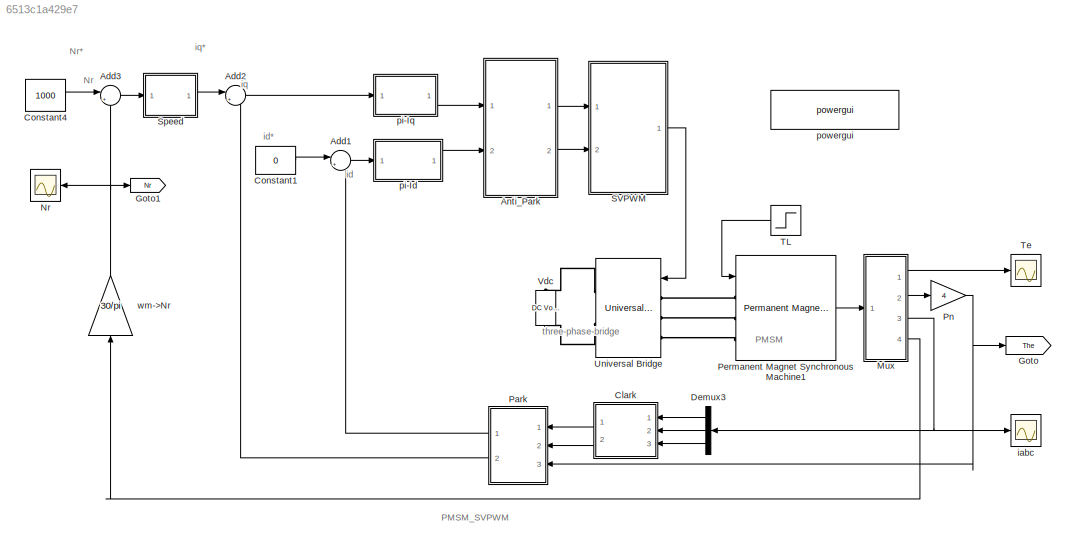
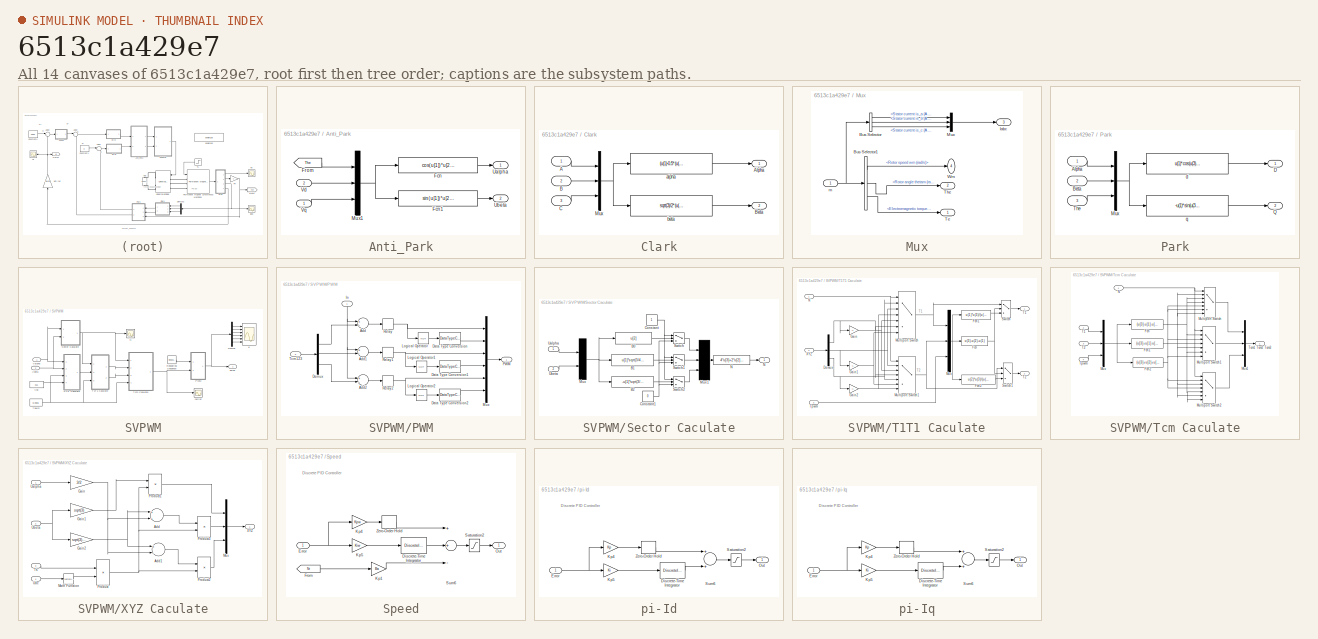
[diagram: thumbnail index - all 14 canvases of the model, root first then tree order]
MODEL slx_6513c1a429e7
KIND model
CONFIG InitFcn = Ts = 10e-6;\n\nR = 0.958;\nLd = 5.25e-3;\nLq = 12e-3;\nPn = 4;\nflux = 0.1827;
BLOCK [Sum] Add1
  IconShape = round
  InputSameDT = off
  Inputs = |+-
  OutDataTypeStr = Inherit: Inherit via internal rule
  Ports = [2, 1]
  SaturateOnIntegerOverflow = off
BLOCK [Sum] Add2
  IconShape = round
  InputSameDT = off
  Inputs = |+-
  OutDataTypeStr = Inherit: Inherit via internal rule
  Ports = [2, 1]
  SaturateOnIntegerOverflow = off
BLOCK [Sum] Add3
  IconShape = round
  InputSameDT = off
  Inputs = |+-
  OutDataTypeStr = Inherit: Inherit via internal rule
  Ports = [2, 1]
  SaturateOnIntegerOverflow = off
BLOCK [SubSystem] Anti_Park
  FunctionWithSeparateData = off
  MaskHideContents = off
  MinAlgLoopOccurrences = off
  Opaque = off
  Ports = [2, 2]
  PropExecContextOutsideSubsystem = off
  RTWSystemCode = Auto
  RequestExecContextInheritance = off
  Variant = off
BLOCK [Fcn] Anti_Park/Fcn
  Expr = cos(u[1])*u[2]-sin(u[1])*u[3]
BLOCK [Fcn] Anti_Park/Fcn1
  Expr = sin(u[1])*u[2]+cos(u[1])*u[3]
BLOCK [From] Anti_Park/From
  GotoTag = The
  TagVisibility = global
BLOCK [Mux] Anti_Park/Mux1
  DisplayOption = bar
  Inputs = 3
  Ports = [3, 1]
BLOCK [Outport] Anti_Park/Ualpha
  IconDisplay = Port number
BLOCK [Outport] Anti_Park/Ubeta
  IconDisplay = Port number
  Port = 2
BLOCK [Inport] Anti_Park/Vd
  IconDisplay = Port number
  Port = 2
BLOCK [Inport] Anti_Park/Vq
  IconDisplay = Port number
BLOCK [SubSystem] Clark
  FunctionWithSeparateData = off
  MaskHideContents = off
  MinAlgLoopOccurrences = off
  Opaque = off
  Ports = [3, 2]
  PropExecContextOutsideSubsystem = off
  RTWSystemCode = Auto
  RequestExecContextInheritance = off
  Variant = off
BLOCK [Inport] Clark/A
  IconDisplay = Port number
BLOCK [Outport] Clark/Alpha
  IconDisplay = Port number
BLOCK [Inport] Clark/B
  IconDisplay = Port number
  Port = 2
BLOCK [Outport] Clark/Beta
  IconDisplay = Port number
  Port = 2
BLOCK [Inport] Clark/C
  IconDisplay = Port number
  Port = 3
BLOCK [Mux] Clark/Mux
  DisplayOption = bar
  Inputs = 3
  Ports = [3, 1]
BLOCK [Fcn] Clark/alpha
  Expr = (u(1)-0.5*(u(2)+u(3)))*2/3
BLOCK [Fcn] Clark/beta
  Expr = sqrt(3)/2*(u(2)-u(3))*2/3
BLOCK [Constant] Constant1
  Value = 0
BLOCK [Constant] Constant4
  Value = 1000
BLOCK [Demux] Demux3
  DisplayOption = bar
  Outputs = 3
  Ports = [1, 3]
BLOCK [Goto] Goto
  GotoTag = The
  TagVisibility = global
BLOCK [Goto] Goto1
  GotoTag = Nr
  TagVisibility = global
BLOCK [SubSystem] Mux
  FunctionWithSeparateData = off
  MaskHideContents = off
  MinAlgLoopOccurrences = off
  Opaque = off
  Ports = [1, 4]
  PropExecContextOutsideSubsystem = off
  RTWSystemCode = Auto
  RequestExecContextInheritance = off
  Variant = off
BLOCK [BusSelector] Mux/Bus Selector
  OutputSignals = Stator current is_a (A),Stator current is_b (A),Stator current is_c (A)
  Ports = [1, 3]
BLOCK [BusSelector] Mux/Bus Selector1
  OutputSignals = Rotor speed wm (rad/s),Rotor angle thetam (rad),Electromagnetic torque Te (N*m)
  Ports = [1, 3]
BLOCK [Outport] Mux/Iabc
  IconDisplay = Port number
  Port = 3
BLOCK [Mux] Mux/Mux
  DisplayOption = bar
  Inputs = 3
  Ports = [3, 1]
BLOCK [Outport] Mux/Te
  IconDisplay = Port number
BLOCK [Outport] Mux/The
  IconDisplay = Port number
  Port = 2
BLOCK [Outport] Mux/Wm
  IconDisplay = Port number
  Port = 4
BLOCK [Inport] Mux/m
  IconDisplay = Port number
BLOCK [Scope] Nr
  DataFormat = StructureWithTime
  Decimation = 1
  Grid = on
  LimitDataPoints = off
  MaxDataPoints = 5000
  NumInputPorts = 1
  Ports = [1]
  SampleInput = off
  SampleTime = -1
  SaveName = Nr
  SaveToWorkspace = on
  ShowLegends = off
  TickLabels = OneTimeTick
  TimeRange = 0.4
  YMax = 1237.05964
  YMin = -137.45107
  ZoomMode = on
BLOCK [SubSystem] Park
  FunctionWithSeparateData = off
  MaskHideContents = off
  MinAlgLoopOccurrences = off
  Opaque = off
  Ports = [3, 2]
  PropExecContextOutsideSubsystem = off
  RTWSystemCode = Auto
  RequestExecContextInheritance = off
  Variant = off
BLOCK [Inport] Park/Alpha
  IconDisplay = Port number
BLOCK [Inport] Park/Beta
  IconDisplay = Port number
  Port = 2
BLOCK [Outport] Park/D
  IconDisplay = Port number
BLOCK [Mux] Park/Mux
  DisplayOption = bar
  Inputs = 3
  Ports = [3, 1]
BLOCK [Outport] Park/Q
  IconDisplay = Port number
  Port = 2
BLOCK [Inport] Park/The
  IconDisplay = Port number
  Port = 3
BLOCK [Fcn] Park/d
  Expr = u(1)*cos(u(3))+u(2)*sin(u(3))
BLOCK [Fcn] Park/q
  Expr = -u(1)*sin(u(3))+u(2)*cos(u(3))
BLOCK [Reference] Permanent Magnet Synchronous Machine1  REF=powerlib/Machines/Permanent Magnet
Synchronous Machine
  Flat = 120
  Flux = 0.1827
  FluxDistribution = Sinusoidal
  Inductance = 8.5e-3
  InitialConditions = [0,0, 0,0]
  InitialConditions5ph = [0 0 0 0 0 0]
  La = 0.000835
  MachineConstant = Flux linkage established by magnets (V.s)
  MeasurementBus = off
  Mechanical = [0.003 0.008 4]
  MechanicalLoad = Torque Tm
  NbPhases = 3
  PolePairs = 3
  Ports = [1, 1, 0, 0, 0, 3]
  PresetModel = No
  RefAngle = Aligned with phase A axis (original Park)
  Resistance = 0.958
  RotorType = Salient-pole
  ShowDetailedParameters = on
  SourceBlock = powerlib/Machines/Permanent Magnet\nSynchronous Machine
  SourceType = Permanent Magnet Synchronous Machine
  TorqueCst = 1.0962
  TsBlock = -1
  TsPowergui = 0
  VoltageCst = 132.5525
  dqInductances = [5.25e-3,12e-3]
BLOCK [Gain] Pn
  Gain = 4
  OutDataTypeStr = Inherit: Inherit via internal rule
  ParamDataTypeStr = Inherit: Inherit via internal rule
  SaturateOnIntegerOverflow = off
BLOCK [SubSystem] SVPWM
  FunctionWithSeparateData = off
  MaskHideContents = off
  MinAlgLoopOccurrences = off
  Opaque = off
  Ports = [2, 1]
  PropExecContextOutsideSubsystem = off
  RTWSystemCode = Auto
  RequestExecContextInheritance = off
  Variant = off
BLOCK [Demux] SVPWM/Demux
  DisplayOption = bar
  Outputs = 6
  Ports = [1, 6]
BLOCK [Scope] SVPWM/N
  DataFormat = StructureWithTime
  Decimation = 1
  Grid = on
  LimitDataPoints = off
  MaxDataPoints = 5000
  NumInputPorts = 1
  Ports = [1]
  SampleInput = off
  SampleTime = -1
  SaveName = ScopeData1
  SaveToWorkspace = off
  ShowLegends = off
  TickLabels = OneTimeTick
  TimeRange = auto
  YMax = 6.625
  YMin = 0.375
  ZoomMode = on
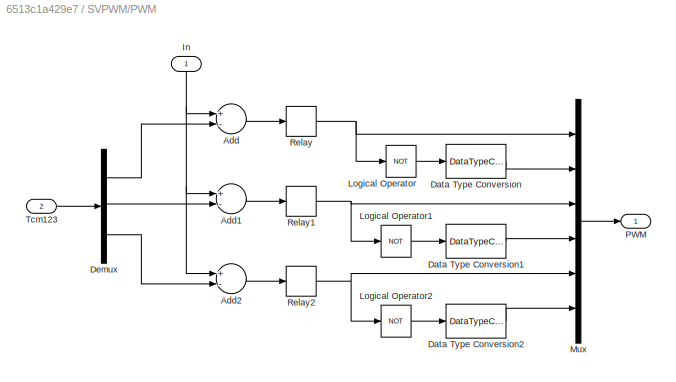
BLOCK [SubSystem] SVPWM/PWM
  FunctionWithSeparateData = off
  MaskHideContents = off
  MinAlgLoopOccurrences = off
  Opaque = off
  Ports = [2, 1]
  PropExecContextOutsideSubsystem = off
  RTWSystemCode = Auto
  RequestExecContextInheritance = off
  Variant = off
BLOCK [Sum] SVPWM/PWM/Add
  InputSameDT = off
  Inputs = +-
  OutDataTypeStr = Inherit: Inherit via internal rule
  Ports = [2, 1]
  SaturateOnIntegerOverflow = off
BLOCK [Sum] SVPWM/PWM/Add1
  InputSameDT = off
  Inputs = +-
  OutDataTypeStr = Inherit: Inherit via internal rule
  Ports = [2, 1]
  SaturateOnIntegerOverflow = off
BLOCK [Sum] SVPWM/PWM/Add2
  InputSameDT = off
  Inputs = +-
  OutDataTypeStr = Inherit: Inherit via internal rule
  Ports = [2, 1]
  SaturateOnIntegerOverflow = off
BLOCK [DataTypeConversion] SVPWM/PWM/Data Type Conversion
  OutDataTypeStr = double
  RndMeth = Floor
  SaturateOnIntegerOverflow = off
BLOCK [DataTypeConversion] SVPWM/PWM/Data Type Conversion1
  OutDataTypeStr = double
  RndMeth = Floor
  SaturateOnIntegerOverflow = off
BLOCK [DataTypeConversion] SVPWM/PWM/Data Type Conversion2
  OutDataTypeStr = double
  RndMeth = Floor
  SaturateOnIntegerOverflow = off
BLOCK [Demux] SVPWM/PWM/Demux
  DisplayOption = bar
  Outputs = 3
  Ports = [1, 3]
BLOCK [Inport] SVPWM/PWM/In
  IconDisplay = Port number
BLOCK [Logic] SVPWM/PWM/Logical Operator
  AllPortsSameDT = off
  Operator = NOT
  OutDataTypeStr = boolean
  Ports = [1, 1]
BLOCK [Logic] SVPWM/PWM/Logical Operator1
  AllPortsSameDT = off
  Operator = NOT
  OutDataTypeStr = boolean
  Ports = [1, 1]
BLOCK [Logic] SVPWM/PWM/Logical Operator2
  AllPortsSameDT = off
  Operator = NOT
  OutDataTypeStr = boolean
  Ports = [1, 1]
BLOCK [Mux] SVPWM/PWM/Mux
  DisplayOption = bar
  Inputs = 6
  Ports = [6, 1]
BLOCK [Outport] SVPWM/PWM/PWM
  IconDisplay = Port number
BLOCK [Relay] SVPWM/PWM/Relay
  OffSwitchValue = -eps
BLOCK [Relay] SVPWM/PWM/Relay1
  OffSwitchValue = -eps
BLOCK [Relay] SVPWM/PWM/Relay2
  OffSwitchValue = -eps
BLOCK [Inport] SVPWM/PWM/Tcm123
  IconDisplay = Port number
  Port = 2
BLOCK [Reference] SVPWM/Repeating Sequence  REF=simulink/Sources/Repeating
Sequence
  Ports = [0, 1]
  SourceBlock = simulink/Sources/Repeating\nSequence
  SourceType = Repeating table
  rep_seq_t = [0 0.00005 0.0001]
  rep_seq_y = [0 0.00005 0]
BLOCK [SubSystem] SVPWM/Sector Caculate
  FunctionWithSeparateData = off
  MaskHideContents = off
  MinAlgLoopOccurrences = off
  Opaque = off
  Ports = [2, 1]
  PropExecContextOutsideSubsystem = off
  RTWSystemCode = Auto
  RequestExecContextInheritance = off
  Variant = off
BLOCK [Fcn] SVPWM/Sector Caculate/B0
  Expr = u[2]
BLOCK [Fcn] SVPWM/Sector Caculate/B1
  Expr = u[1]*sqrt(3/4)-0.5*u[2]
BLOCK [Fcn] SVPWM/Sector Caculate/B2
  Expr = -u[1]*sqrt(3/4)-u[2]*0.5
BLOCK [Constant] SVPWM/Sector Caculate/Constant
BLOCK [Constant] SVPWM/Sector Caculate/Constant1
  Value = 0
BLOCK [Mux] SVPWM/Sector Caculate/Mux
  Inputs = 2
  Ports = [2, 1]
BLOCK [Mux] SVPWM/Sector Caculate/Mux1
  Inputs = 3
  Ports = [3, 1]
BLOCK [Fcn] SVPWM/Sector Caculate/N
  Expr = 4*u[3]+2*u[2]+u[1]
BLOCK [Outport] SVPWM/Sector Caculate/N 
  IconDisplay = Port number
BLOCK [Switch] SVPWM/Sector Caculate/Switch
  InputSameDT = off
  SaturateOnIntegerOverflow = off
BLOCK [Switch] SVPWM/Sector Caculate/Switch1
  InputSameDT = off
  SaturateOnIntegerOverflow = off
BLOCK [Switch] SVPWM/Sector Caculate/Switch2
  InputSameDT = off
  SaturateOnIntegerOverflow = off
BLOCK [Inport] SVPWM/Sector Caculate/Ualpha
  IconDisplay = Port number
BLOCK [Inport] SVPWM/Sector Caculate/Ubeta
  IconDisplay = Port number
  Port = 2
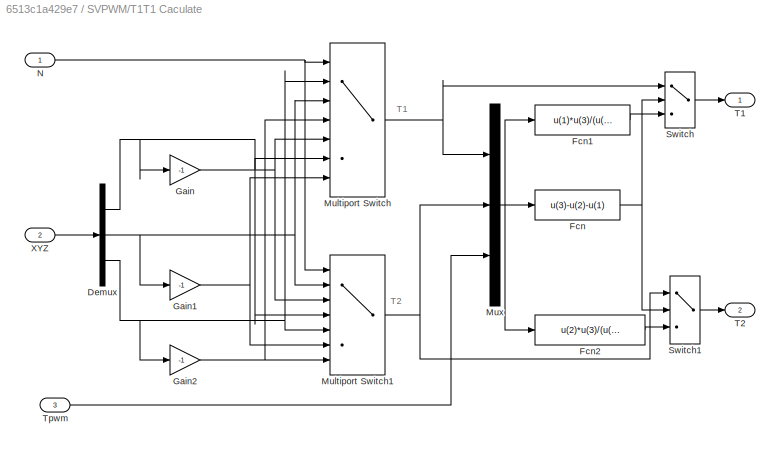
BLOCK [SubSystem] SVPWM/T1T1 Caculate
  FunctionWithSeparateData = off
  MaskHideContents = off
  MinAlgLoopOccurrences = off
  Opaque = off
  Ports = [3, 2]
  PropExecContextOutsideSubsystem = off
  RTWSystemCode = Auto
  RequestExecContextInheritance = off
  Variant = off
BLOCK [Demux] SVPWM/T1T1 Caculate/Demux
  DisplayOption = bar
  Outputs = 3
  Ports = [1, 3]
BLOCK [Fcn] SVPWM/T1T1 Caculate/Fcn
  Expr = u(3)-u(2)-u(1)
BLOCK [Fcn] SVPWM/T1T1 Caculate/Fcn1
  Expr = u(1)*u(3)/(u(1)+u(2))
BLOCK [Fcn] SVPWM/T1T1 Caculate/Fcn2
  Expr = u(2)*u(3)/(u(1)+u(2))
BLOCK [Gain] SVPWM/T1T1 Caculate/Gain
  Gain = -1
  OutDataTypeStr = Inherit: Inherit via internal rule
  ParamDataTypeStr = Inherit: Inherit via internal rule
  SaturateOnIntegerOverflow = off
BLOCK [Gain] SVPWM/T1T1 Caculate/Gain1
  Gain = -1
  OutDataTypeStr = Inherit: Inherit via internal rule
  ParamDataTypeStr = Inherit: Inherit via internal rule
  SaturateOnIntegerOverflow = off
BLOCK [Gain] SVPWM/T1T1 Caculate/Gain2
  Gain = -1
  OutDataTypeStr = Inherit: Inherit via internal rule
  ParamDataTypeStr = Inherit: Inherit via internal rule
  SaturateOnIntegerOverflow = off
BLOCK [MultiPortSwitch] SVPWM/T1T1 Caculate/Multiport Switch
  InputSameDT = off
  Inputs = 6
  Ports = [7, 1]
  SaturateOnIntegerOverflow = off
BLOCK [MultiPortSwitch] SVPWM/T1T1 Caculate/Multiport Switch1
  InputSameDT = off
  Inputs = 6
  Ports = [7, 1]
  SaturateOnIntegerOverflow = off
BLOCK [Mux] SVPWM/T1T1 Caculate/Mux
  DisplayOption = bar
  Inputs = 3
  Ports = [3, 1]
BLOCK [Inport] SVPWM/T1T1 Caculate/N
  IconDisplay = Port number
BLOCK [Switch] SVPWM/T1T1 Caculate/Switch
  InputSameDT = off
  SaturateOnIntegerOverflow = off
BLOCK [Switch] SVPWM/T1T1 Caculate/Switch1
  Criteria = u2 > Threshold
  InputSameDT = off
  SaturateOnIntegerOverflow = off
BLOCK [Outport] SVPWM/T1T1 Caculate/T1
  IconDisplay = Port number
BLOCK [Outport] SVPWM/T1T1 Caculate/T2
  IconDisplay = Port number
  Port = 2
BLOCK [Inport] SVPWM/T1T1 Caculate/Tpwm
  IconDisplay = Port number
  Port = 3
BLOCK [Inport] SVPWM/T1T1 Caculate/XYZ
  IconDisplay = Port number
  Port = 2
BLOCK [SubSystem] SVPWM/Tcm Caculate
  FunctionWithSeparateData = off
  MaskHideContents = off
  MinAlgLoopOccurrences = off
  Opaque = off
  Ports = [4, 1]
  PropExecContextOutsideSubsystem = off
  RTWSystemCode = Auto
  RequestExecContextInheritance = off
  Variant = off
BLOCK [Fcn] SVPWM/Tcm Caculate/Fcn
  Expr = (u[3]-u[1]-u[2])/4
BLOCK [Fcn] SVPWM/Tcm Caculate/Fcn1
  Expr = (u[3]+u[1]-u[2])/4
BLOCK [Fcn] SVPWM/Tcm Caculate/Fcn2
  Expr = (u[3]+u[2]+u[1])/4
BLOCK [MultiPortSwitch] SVPWM/Tcm Caculate/Multiport Switch
  InputSameDT = off
  Inputs = 6
  Ports = [7, 1]
  SaturateOnIntegerOverflow = off
BLOCK [MultiPortSwitch] SVPWM/Tcm Caculate/Multiport Switch1
  InputSameDT = off
  Inputs = 6
  Ports = [7, 1]
  SaturateOnIntegerOverflow = off
BLOCK [MultiPortSwitch] SVPWM/Tcm Caculate/Multiport Switch2
  InputSameDT = off
  Inputs = 6
  Ports = [7, 1]
  SaturateOnIntegerOverflow = off
BLOCK [Mux] SVPWM/Tcm Caculate/Mux
  DisplayOption = bar
  Inputs = 3
  Ports = [3, 1]
BLOCK [Mux] SVPWM/Tcm Caculate/Mux1
  DisplayOption = bar
  Inputs = 3
  Ports = [3, 1]
BLOCK [Inport] SVPWM/Tcm Caculate/N
  IconDisplay = Port number
BLOCK [Inport] SVPWM/Tcm Caculate/T1
  IconDisplay = Port number
  Port = 2
BLOCK [Inport] SVPWM/Tcm Caculate/T2
  IconDisplay = Port number
  Port = 3
BLOCK [Outport] SVPWM/Tcm Caculate/Tcm1 Tcm2 Tcm3
  IconDisplay = Port number
BLOCK [Inport] SVPWM/Tcm Caculate/Tpwm
  IconDisplay = Port number
  Port = 4
BLOCK [Constant] SVPWM/Tpwm
  Value = 0.0001
BLOCK [Inport] SVPWM/Valpha
  IconDisplay = Port number
BLOCK [Inport] SVPWM/Vbeta
  IconDisplay = Port number
  Port = 2
BLOCK [Constant] SVPWM/Vdc
  Value = 311
BLOCK [SubSystem] SVPWM/XYZ Caculate
  FunctionWithSeparateData = off
  MaskHideContents = off
  MinAlgLoopOccurrences = off
  Opaque = off
  Ports = [4, 1]
  PropExecContextOutsideSubsystem = off
  RTWSystemCode = Auto
  RequestExecContextInheritance = off
  Variant = off
BLOCK [Sum] SVPWM/XYZ Caculate/Add
  InputSameDT = off
  OutDataTypeStr = Inherit: Inherit via internal rule
  Ports = [2, 1]
  SaturateOnIntegerOverflow = off
BLOCK [Sum] SVPWM/XYZ Caculate/Add1
  InputSameDT = off
  Inputs = +-
  OutDataTypeStr = Inherit: Inherit via internal rule
  Ports = [2, 1]
  SaturateOnIntegerOverflow = off
BLOCK [Gain] SVPWM/XYZ Caculate/Gain
  Gain = 3/2
  OutDataTypeStr = Inherit: Inherit via internal rule
  ParamDataTypeStr = Inherit: Inherit via internal rule
  SaturateOnIntegerOverflow = off
BLOCK [Gain] SVPWM/XYZ Caculate/Gain1
  Gain = sqrt(3)
  OutDataTypeStr = Inherit: Inherit via internal rule
  ParamDataTypeStr = Inherit: Inherit via internal rule
  SaturateOnIntegerOverflow = off
BLOCK [Gain] SVPWM/XYZ Caculate/Gain2
  Gain = sqrt(3)/2
  OutDataTypeStr = Inherit: Inherit via internal rule
  ParamDataTypeStr = Inherit: Inherit via internal rule
  SaturateOnIntegerOverflow = off
BLOCK [Math] SVPWM/XYZ Caculate/Math Function
  Operator = reciprocal
  Ports = [1, 1]
BLOCK [Mux] SVPWM/XYZ Caculate/Mux
  DisplayOption = bar
  Inputs = 3
  Ports = [3, 1]
BLOCK [Product] SVPWM/XYZ Caculate/Product
  InputSameDT = off
  OutDataTypeStr = Inherit: Inherit via internal rule
  Ports = [2, 1]
  SaturateOnIntegerOverflow = off
BLOCK [Product] SVPWM/XYZ Caculate/Product1
  InputSameDT = off
  OutDataTypeStr = Inherit: Inherit via internal rule
  Ports = [2, 1]
  SaturateOnIntegerOverflow = off
BLOCK [Product] SVPWM/XYZ Caculate/Product2
  InputSameDT = off
  OutDataTypeStr = Inherit: Inherit via internal rule
  Ports = [2, 1]
  SaturateOnIntegerOverflow = off
BLOCK [Product] SVPWM/XYZ Caculate/Product3
  InputSameDT = off
  OutDataTypeStr = Inherit: Inherit via internal rule
  Ports = [2, 1]
  SaturateOnIntegerOverflow = off
BLOCK [Inport] SVPWM/XYZ Caculate/Ts
  IconDisplay = Port number
  Port = 3
BLOCK [Inport] SVPWM/XYZ Caculate/Ualpha
  IconDisplay = Port number
BLOCK [Inport] SVPWM/XYZ Caculate/Ubeta
  IconDisplay = Port number
  Port = 2
BLOCK [Inport] SVPWM/XYZ Caculate/Udc
  IconDisplay = Port number
  Port = 4
BLOCK [Outport] SVPWM/XYZ Caculate/XYZ
  IconDisplay = Port number
BLOCK [Scope] SVPWM/carrier
  DataFormat = StructureWithTime
  Decimation = 1
  Grid = on
  LimitDataPoints = off
  MaxDataPoints = 5000
  NumInputPorts = 1
  Ports = [1]
  SampleInput = off
  SampleTime = -1
  SaveName = ScopeData2
  SaveToWorkspace = off
  ShowLegends = off
  TickLabels = OneTimeTick
  TimeRange = auto
  YMax = 0.000054
  YMin = -0.000004
  ZoomMode = on
BLOCK [Scope] SVPWM/g
  DataFormat = StructureWithTime
  Decimation = 1
  Grid = on
  LimitDataPoints = off
  MaxDataPoints = 5000
  NumInputPorts = 6
  Ports = [6]
  SampleInput = off
  SampleTime = -1
  SaveName = ScopeData14
  SaveToWorkspace = on
  ShowLegends = off
  TickLabels = OneTimeTick
  TimeRange = auto
  YMax = 1.125~1.125~1.125~1.125~1.125~1.125
  YMin = -0.125~-0.125~-0.125~-0.125~-0.125~-0.125
  ZoomMode = on
BLOCK [Outport] SVPWM/pulse
  IconDisplay = Port number
BLOCK [SubSystem] Speed
  AncestorBlock = powerlib_extras/Discrete \nControl Blocks/Discrete\nPI Controller
  DialogController = POWERSYS.PowerSysDialog
  FunctionWithSeparateData = off
  MaskCallbackString = |||||
  MaskDescription = This block implements a discrete PI controller.
  MaskDisplay = disp('PI');
  MaskEnableString = on,on,on,on,on,on
  MaskHelp = This block is part of a subset of blocks in the Extras library that does not have documentation associated with it, other than the block mask description.
  MaskHideContents = off
  MaskIconFrame = on
  MaskIconOpaque = on
  MaskIconRotate = none
  MaskIconUnits = autoscale
  MaskInitialization = UpperLimit=Par_Limits(1);\nLowerLimit=Par_Limits(2);\npower_initmask();
  MaskPortRotate = default
  MaskPromptString = Proportional gain (Kp):|Integral gain (Ki):|feedback gain (Ba)|Output limits: [ Upper   Lower ]|Output initial value:|Sample time:
  MaskSelfModifiable = on
  MaskStyleString = edit,edit,edit,edit,edit,edit
  MaskToolTipString = on,on,on,on,on,on
  MaskTunableValueString = on,on,on,on,on,on
  MaskType = Discrete PI Controller
  MaskValueString = 0.14|0.14*50| 0.013|[30 -30]|0|10e-6
  MaskVariables = Kpw=@1;Kiw=@2;Ba=@3;Par_Limits=@4;Init=@5;Ts=@6;
  MaskVisibilityString = on,on,on,on,on,on
  MinAlgLoopOccurrences = off
  Opaque = off
  Ports = [1, 1]
  PropExecContextOutsideSubsystem = off
  RTWSystemCode = Auto
  RequestExecContextInheritance = off
  Variant = off
BLOCK [DiscreteIntegrator] Speed/Discrete-Time Integrator
  ICPrevOutput = DiscIntNeverNeededParam
  ICPrevScaledInput = DiscIntNeverNeededParam
  InitialCondition = Init
  LimitOutput = on
  LowerSaturationLimit = LowerLimit
  Ports = [1, 1]
  SampleTime = Ts
  UpperSaturationLimit = UpperLimit
BLOCK [Inport] Speed/Error
  IconDisplay = Port number
  SampleTime = Ts
BLOCK [From] Speed/From
  GotoTag = Nr
  TagVisibility = global
BLOCK [Gain] Speed/Kp1
  Gain = Ba
  SampleTime = Ts
BLOCK [Gain] Speed/Kp4
  Gain = Kpw
  SampleTime = Ts
BLOCK [Gain] Speed/Kp5
  Gain = Kiw
  SampleTime = Ts
BLOCK [Outport] Speed/Out
  IconDisplay = Port number
  InitialOutput = 0
  SampleTime = Ts
BLOCK [Saturate] Speed/Saturation2
  InputPortMap = u0
  LowerLimit = LowerLimit
  Ports = [1, 1]
  SampleTime = Ts
  UpperLimit = UpperLimit
BLOCK [Sum] Speed/Sum6
  Inputs = ++-
  Ports = [3, 1]
  SampleTime = Ts
BLOCK [ZeroOrderHold] Speed/Zero-Order Hold
  SampleTime = Ts
BLOCK [Step] TL
  After = 10
  SampleTime = 0
  Time = 0.2
BLOCK [Scope] Te
  DataFormat = StructureWithTime
  Decimation = 1
  Grid = on
  LimitDataPoints = off
  MaxDataPoints = 5000
  NumInputPorts = 1
  Ports = [1]
  SampleInput = off
  SampleTime = -1
  SaveName = Te
  SaveToWorkspace = on
  ShowLegends = off
  TickLabels = OneTimeTick
  TimeRange = auto
  YMax = 35.70493
  YMin = -7.00528
  ZoomMode = on
BLOCK [Reference] Universal Bridge  REF=powerlib/Power
Electronics/Universal Bridge
  Arms = 3
  Device = IGBT / Diodes
  ForwardVoltage = 0
  ForwardVoltages = [  0  0  ]
  GTOparameters = [ 10e-6 , 20e-6 ]
  IGBTparameters = [ 1e-6 , 2e-6 ]
  Lon = 0
  Measurements = None
  Measurements_2 = None
  Ports = [1, 0, 0, 0, 0, 3, 2]
  Ron = 1e-3
  SnubberCapacitance = inf
  SnubberResistance = 1e5
  SourceBlock = powerlib/Power\nElectronics/Universal Bridge
  SourceType = Universal Bridge
  converterType = Rectifier
BLOCK [Reference] Vdc  REF=powerlib/Electrical
Sources/DC Voltage Source
  Amplitude = 311
  Measurements = None
  Ports = [0, 0, 0, 0, 0, 1, 1]
  SourceBlock = powerlib/Electrical\nSources/DC Voltage Source
  SourceType = DC Voltage Source
BLOCK [Scope] iabc
  DataFormat = StructureWithTime
  Decimation = 1
  Grid = on
  LimitDataPoints = off
  MaxDataPoints = 5000
  NumInputPorts = 1
  Ports = [1]
  SampleInput = off
  SampleTime = -1
  SaveName = Iabc
  SaveToWorkspace = on
  ShowLegends = off
  TickLabels = OneTimeTick
  TimeRange = auto
  YMax = 37.04071
  YMin = -36.78296
  ZoomMode = on
BLOCK [SubSystem] pi-Id
  AncestorBlock = powerlib_extras/Discrete \nControl Blocks/Discrete\nPI Controller
  DialogController = POWERSYS.PowerSysDialog
  FunctionWithSeparateData = off
  MaskCallbackString = ||||
  MaskDescription = This block implements a discrete PI controller.
  MaskDisplay = disp('PI');
  MaskEnableString = on,on,on,on,on
  MaskHelp = This block is part of a subset of blocks in the Extras library that does not have documentation associated with it, other than the block mask description.
  MaskHideContents = off
  MaskIconFrame = on
  MaskIconOpaque = on
  MaskIconRotate = none
  MaskIconUnits = autoscale
  MaskInitialization = UpperLimit=Par_Limits(1);\nLowerLimit=Par_Limits(2);\npower_initmask();
  MaskPortRotate = default
  MaskPromptString = Proportional gain (Kp):|Integral gain (Ki):|Output limits: [ Upper   Lower ]|Output initial value:|Sample time:
  MaskSelfModifiable = on
  MaskStyleString = edit,edit,edit,edit,edit
  MaskToolTipString = on,on,on,on,on
  MaskTunableValueString = on,on,on,on,on
  MaskType = Discrete PI Controller
  MaskValueString = 5.25e-3*1100|0.958*1100|[311*0.9*sqrt(1/3) -311*0.9*sqrt(1/3)]|0|10e-6
  MaskVariables = Kp=@1;Ki=@2;Par_Limits=@3;Init=@4;Ts=@5;
  MaskVisibilityString = on,on,on,on,on
  MinAlgLoopOccurrences = off
  Opaque = off
  Ports = [1, 1]
  PropExecContextOutsideSubsystem = off
  RTWSystemCode = Auto
  RequestExecContextInheritance = off
  Variant = off
BLOCK [DiscreteIntegrator] pi-Id/Discrete-Time Integrator
  ICPrevOutput = DiscIntNeverNeededParam
  ICPrevScaledInput = DiscIntNeverNeededParam
  InitialCondition = Init
  LimitOutput = on
  LowerSaturationLimit = LowerLimit
  Ports = [1, 1]
  SampleTime = Ts
  UpperSaturationLimit = UpperLimit
BLOCK [Inport] pi-Id/Error
  IconDisplay = Port number
  SampleTime = Ts
BLOCK [Gain] pi-Id/Kp4
  Gain = Kp
  SampleTime = Ts
BLOCK [Gain] pi-Id/Kp5
  Gain = Ki
  SampleTime = Ts
BLOCK [Outport] pi-Id/Out
  IconDisplay = Port number
  InitialOutput = 0
  SampleTime = Ts
BLOCK [Saturate] pi-Id/Saturation2
  InputPortMap = u0
  LowerLimit = LowerLimit
  Ports = [1, 1]
  SampleTime = Ts
  UpperLimit = UpperLimit
BLOCK [Sum] pi-Id/Sum6
  Ports = [2, 1]
  SampleTime = Ts
BLOCK [ZeroOrderHold] pi-Id/Zero-Order Hold
  SampleTime = Ts
BLOCK [SubSystem] pi-Iq
  AncestorBlock = powerlib_extras/Discrete \nControl Blocks/Discrete\nPI Controller
  DialogController = POWERSYS.PowerSysDialog
  FunctionWithSeparateData = off
  MaskCallbackString = ||||
  MaskDescription = This block implements a discrete PI controller.
  MaskDisplay = disp('PI');
  MaskEnableString = on,on,on,on,on
  MaskHelp = This block is part of a subset of blocks in the Extras library that does not have documentation associated with it, other than the block mask description.
  MaskHideContents = off
  MaskIconFrame = on
  MaskIconOpaque = on
  MaskIconRotate = none
  MaskIconUnits = autoscale
  MaskInitialization = UpperLimit=Par_Limits(1);\nLowerLimit=Par_Limits(2);\npower_initmask();
  MaskPortRotate = default
  MaskPromptString = Proportional gain (Kp):|Integral gain (Ki):|Output limits: [ Upper   Lower ]|Output initial value:|Sample time:
  MaskSelfModifiable = on
  MaskStyleString = edit,edit,edit,edit,edit
  MaskToolTipString = on,on,on,on,on
  MaskTunableValueString = on,on,on,on,on
  MaskType = Discrete PI Controller
  MaskValueString = 12e-3*1100|0.958*1100|[311*0.9*sqrt(1/3) -311*0.9*sqrt(1/3)]|0|10e-6
  MaskVariables = Kp=@1;Ki=@2;Par_Limits=@3;Init=@4;Ts=@5;
  MaskVisibilityString = on,on,on,on,on
  MinAlgLoopOccurrences = off
  Opaque = off
  Ports = [1, 1]
  PropExecContextOutsideSubsystem = off
  RTWSystemCode = Auto
  RequestExecContextInheritance = off
  Variant = off
BLOCK [DiscreteIntegrator] pi-Iq/Discrete-Time Integrator
  ICPrevOutput = DiscIntNeverNeededParam
  ICPrevScaledInput = DiscIntNeverNeededParam
  InitialCondition = Init
  LimitOutput = on
  LowerSaturationLimit = LowerLimit
  Ports = [1, 1]
  SampleTime = Ts
  UpperSaturationLimit = UpperLimit
BLOCK [Inport] pi-Iq/Error
  IconDisplay = Port number
  SampleTime = Ts
BLOCK [Gain] pi-Iq/Kp4
  Gain = Kp
  SampleTime = Ts
BLOCK [Gain] pi-Iq/Kp5
  Gain = Ki
  SampleTime = Ts
BLOCK [Outport] pi-Iq/Out
  IconDisplay = Port number
  InitialOutput = 0
  SampleTime = Ts
BLOCK [Saturate] pi-Iq/Saturation2
  InputPortMap = u0
  LowerLimit = LowerLimit
  Ports = [1, 1]
  SampleTime = Ts
  UpperLimit = UpperLimit
BLOCK [Sum] pi-Iq/Sum6
  Ports = [2, 1]
  SampleTime = Ts
BLOCK [ZeroOrderHold] pi-Iq/Zero-Order Hold
  SampleTime = Ts
BLOCK [Reference] powergui  REF=powerlib/powergui
  CurrentSourceSwitches = off
  DisableRonSwitches = off
  DisableSnubberDevices = off
  DisableVfSwitches = off
  DisplayEquations = off
  DisplayStyle = 1
  EnableUseOfTLC = off
  ErrMax = 1e-4
  ExternalGateDelay = off
  Frange = [0:2:500]
  FreqAxis = off
  FunctionMessages = off
  HookPort = off
  Interpol = off
  Iterations = 50
  MaxFrequency = 1000
  Pbase = 100e6
  Ports = []
  ResistiveCurrentMeasurement = off
  RestoreLinks = warning
  RmsSteady = 1
  SPID = off
  SampleTime = 1e-5
  ShowGrid = off
  SolverType = Tustin/Backward Euler (TBE)
  SourceBlock = powerlib/powergui
  SourceType = PSB option menu block
  StartTime = 0.0
  SwTol = 0
  Ts = 0
  UnitsV = kV
  UnitsW = MW
  Xlog = on
  Ylog = off
  ZoomFFT = on
  buscounter = 0
  cycles = 1
  display = off
  echomessages = off
  frequency = 60
  frequencyindice = 0
  frequencyindicesteady = 1
  fundamental = 60
  methode = off
  save = off
  structure = 0
  variable = ZData
  x0status = blocks
BLOCK [Gain] wm->Nr
  Gain = 30/pi
  OutDataTypeStr = Inherit: Inherit via internal rule
  ParamDataTypeStr = Inherit: Inherit via internal rule
  SaturateOnIntegerOverflow = off
ANNOTATION (root): Nr
ANNOTATION (root): Nr*
ANNOTATION (root): PMSM
ANNOTATION (root): PMSM_SVPWM
ANNOTATION (root): id
ANNOTATION (root): id*
ANNOTATION (root): iq
ANNOTATION (root): iq*
ANNOTATION (root): three-phase-bridge
ANNOTATION SVPWM/T1T1 Caculate: T1
ANNOTATION SVPWM/T1T1 Caculate: T2
ANNOTATION Speed: Discrete PID Controller
ANNOTATION pi-Id: Discrete PID Controller
ANNOTATION pi-Iq: Discrete PID Controller
LINE Add1:1 -> pi-Id:1
LINE Add2:1 -> pi-Iq:1
LINE Add3:1 -> Speed:1
LINE Anti_Park/Fcn1:1 -> Anti_Park/Ubeta:1
LINE Anti_Park/Fcn:1 -> Anti_Park/Ualpha:1
LINE Anti_Park/From:1 -> Anti_Park/Mux1:1
NET Anti_Park/Mux1:1 -> Anti_Park/Fcn1:1, Anti_Park/Fcn:1
LINE Anti_Park/Vd:1 -> Anti_Park/Mux1:2
LINE Anti_Park/Vq:1 -> Anti_Park/Mux1:3
LINE Anti_Park:1 -> SVPWM:1
LINE Anti_Park:2 -> SVPWM:2
LINE Clark/A:1 -> Clark/Mux:1
LINE Clark/B:1 -> Clark/Mux:2
LINE Clark/C:1 -> Clark/Mux:3
NET Clark/Mux:1 -> Clark/alpha:1, Clark/beta:1
LINE Clark/alpha:1 -> Clark/Alpha:1
LINE Clark/beta:1 -> Clark/Beta:1
LINE Clark:1 -> Park:1
LINE Clark:2 -> Park:2
LINE Constant1:1 -> Add1:1
LINE Constant4:1 -> Add3:1
LINE Demux3:1 -> Clark:1
LINE Demux3:2 -> Clark:2
LINE Demux3:3 -> Clark:3
LINE Mux/Bus Selector1:1 -> Mux/Wm:1
LINE Mux/Bus Selector1:2 -> Mux/The:1
LINE Mux/Bus Selector1:3 -> Mux/Te:1
LINE Mux/Bus Selector:1 -> Mux/Mux:1
LINE Mux/Bus Selector:2 -> Mux/Mux:2
LINE Mux/Bus Selector:3 -> Mux/Mux:3
LINE Mux/Mux:1 -> Mux/Iabc:1
NET Mux/m:1 -> Mux/Bus Selector1:1, Mux/Bus Selector:1
LINE Mux:1 -> Te:1
LINE Mux:2 -> Pn:1
NET Mux:3 -> Demux3:1, iabc:1
LINE Mux:4 -> wm->Nr:1
LINE Park/Alpha:1 -> Park/Mux:1
LINE Park/Beta:1 -> Park/Mux:2
NET Park/Mux:1 -> Park/d:1, Park/q:1
LINE Park/The:1 -> Park/Mux:3
LINE Park/d:1 -> Park/D:1
LINE Park/q:1 -> Park/Q:1
LINE Park:1 -> Add1:2
LINE Park:2 -> Add2:2
LINE Permanent Magnet Synchronous Machine1:1 -> Mux:1
NET Pn:1 -> Goto:1, Park:3
LINE SVPWM/Demux:1 -> SVPWM/g:1
LINE SVPWM/Demux:2 -> SVPWM/g:2
LINE SVPWM/Demux:3 -> SVPWM/g:3
LINE SVPWM/Demux:4 -> SVPWM/g:4
LINE SVPWM/Demux:5 -> SVPWM/g:5
LINE SVPWM/Demux:6 -> SVPWM/g:6
LINE SVPWM/PWM/Add1:1 -> SVPWM/PWM/Relay1:1
LINE SVPWM/PWM/Add2:1 -> SVPWM/PWM/Relay2:1
LINE SVPWM/PWM/Add:1 -> SVPWM/PWM/Relay:1
LINE SVPWM/PWM/Data Type Conversion1:1 -> SVPWM/PWM/Mux:4
LINE SVPWM/PWM/Data Type Conversion2:1 -> SVPWM/PWM/Mux:6
LINE SVPWM/PWM/Data Type Conversion:1 -> SVPWM/PWM/Mux:2
LINE SVPWM/PWM/Demux:1 -> SVPWM/PWM/Add:2
LINE SVPWM/PWM/Demux:2 -> SVPWM/PWM/Add1:2
LINE SVPWM/PWM/Demux:3 -> SVPWM/PWM/Add2:2
NET SVPWM/PWM/In:1 -> SVPWM/PWM/Add1:1, SVPWM/PWM/Add2:1, SVPWM/PWM/Add:1
LINE SVPWM/PWM/Logical Operator1:1 -> SVPWM/PWM/Data Type Conversion1:1
LINE SVPWM/PWM/Logical Operator2:1 -> SVPWM/PWM/Data Type Conversion2:1
LINE SVPWM/PWM/Logical Operator:1 -> SVPWM/PWM/Data Type Conversion:1
LINE SVPWM/PWM/Mux:1 -> SVPWM/PWM/PWM:1
NET SVPWM/PWM/Relay1:1 -> SVPWM/PWM/Logical Operator1:1, SVPWM/PWM/Mux:3
NET SVPWM/PWM/Relay2:1 -> SVPWM/PWM/Logical Operator2:1, SVPWM/PWM/Mux:5
NET SVPWM/PWM/Relay:1 -> SVPWM/PWM/Logical Operator:1, SVPWM/PWM/Mux:1
LINE SVPWM/PWM/Tcm123:1 -> SVPWM/PWM/Demux:1
NET SVPWM/PWM:1 -> SVPWM/Demux:1, SVPWM/pulse:1
LINE SVPWM/Repeating Sequence:1 -> SVPWM/PWM:1
LINE SVPWM/Sector Caculate/B0:1 -> SVPWM/Sector Caculate/Switch:2
LINE SVPWM/Sector Caculate/B1:1 -> SVPWM/Sector Caculate/Switch1:2
LINE SVPWM/Sector Caculate/B2:1 -> SVPWM/Sector Caculate/Switch2:2
NET SVPWM/Sector Caculate/Constant1:1 -> SVPWM/Sector Caculate/Switch1:3, SVPWM/Sector Caculate/Switch2:3, SVPWM/Sector Caculate/Switch:3
NET SVPWM/Sector Caculate/Constant:1 -> SVPWM/Sector Caculate/Switch1:1, SVPWM/Sector Caculate/Switch2:1, SVPWM/Sector Caculate/Switch:1
LINE SVPWM/Sector Caculate/Mux1:1 -> SVPWM/Sector Caculate/N:1
NET SVPWM/Sector Caculate/Mux:1 -> SVPWM/Sector Caculate/B0:1, SVPWM/Sector Caculate/B1:1, SVPWM/Sector Caculate/B2:1
LINE SVPWM/Sector Caculate/N:1 -> SVPWM/Sector Caculate/N :1
LINE SVPWM/Sector Caculate/Switch1:1 -> SVPWM/Sector Caculate/Mux1:2
LINE SVPWM/Sector Caculate/Switch2:1 -> SVPWM/Sector Caculate/Mux1:3
LINE SVPWM/Sector Caculate/Switch:1 -> SVPWM/Sector Caculate/Mux1:1
LINE SVPWM/Sector Caculate/Ualpha:1 -> SVPWM/Sector Caculate/Mux:1
LINE SVPWM/Sector Caculate/Ubeta:1 -> SVPWM/Sector Caculate/Mux:2
NET SVPWM/Sector Caculate:1 -> SVPWM/N:1, SVPWM/T1T1 Caculate:1, SVPWM/Tcm Caculate:1
NET SVPWM/T1T1 Caculate/Demux:1 -> SVPWM/T1T1 Caculate/Gain:1, SVPWM/T1T1 Caculate/Multiport Switch1:4, SVPWM/T1T1 Caculate/Multiport Switch:6
NET SVPWM/T1T1 Caculate/Demux:2 -> SVPWM/T1T1 Caculate/Gain1:1, SVPWM/T1T1 Caculate/Multiport Switch1:2, SVPWM/T1T1 Caculate/Multiport Switch:3
NET SVPWM/T1T1 Caculate/Demux:3 -> SVPWM/T1T1 Caculate/Gain2:1, SVPWM/T1T1 Caculate/Multiport Switch1:5, SVPWM/T1T1 Caculate/Multiport Switch:2
LINE SVPWM/T1T1 Caculate/Fcn1:1 -> SVPWM/T1T1 Caculate/Switch:3
LINE SVPWM/T1T1 Caculate/Fcn2:1 -> SVPWM/T1T1 Caculate/Switch1:3
NET SVPWM/T1T1 Caculate/Fcn:1 -> SVPWM/T1T1 Caculate/Switch1:2, SVPWM/T1T1 Caculate/Switch:2
NET SVPWM/T1T1 Caculate/Gain1:1 -> SVPWM/T1T1 Caculate/Multiport Switch1:6, SVPWM/T1T1 Caculate/Multiport Switch:7
NET SVPWM/T1T1 Caculate/Gain2:1 -> SVPWM/T1T1 Caculate/Multiport Switch1:7, SVPWM/T1T1 Caculate/Multiport Switch:4
NET SVPWM/T1T1 Caculate/Gain:1 -> SVPWM/T1T1 Caculate/Multiport Switch1:3, SVPWM/T1T1 Caculate/Multiport Switch:5
NET SVPWM/T1T1 Caculate/Multiport Switch1:1 -> SVPWM/T1T1 Caculate/Mux:2, SVPWM/T1T1 Caculate/Switch1:1
NET SVPWM/T1T1 Caculate/Multiport Switch:1 -> SVPWM/T1T1 Caculate/Mux:1, SVPWM/T1T1 Caculate/Switch:1
NET SVPWM/T1T1 Caculate/Mux:1 -> SVPWM/T1T1 Caculate/Fcn1:1, SVPWM/T1T1 Caculate/Fcn2:1, SVPWM/T1T1 Caculate/Fcn:1
NET SVPWM/T1T1 Caculate/N:1 -> SVPWM/T1T1 Caculate/Multiport Switch1:1, SVPWM/T1T1 Caculate/Multiport Switch:1
LINE SVPWM/T1T1 Caculate/Switch1:1 -> SVPWM/T1T1 Caculate/T2:1
LINE SVPWM/T1T1 Caculate/Switch:1 -> SVPWM/T1T1 Caculate/T1:1
LINE SVPWM/T1T1 Caculate/Tpwm:1 -> SVPWM/T1T1 Caculate/Mux:3
LINE SVPWM/T1T1 Caculate/XYZ:1 -> SVPWM/T1T1 Caculate/Demux:1
LINE SVPWM/T1T1 Caculate:1 -> SVPWM/Tcm Caculate:2
LINE SVPWM/T1T1 Caculate:2 -> SVPWM/Tcm Caculate:3
NET SVPWM/Tcm Caculate/Fcn1:1 -> SVPWM/Tcm Caculate/Multiport Switch1:4, SVPWM/Tcm Caculate/Multiport Switch1:5, SVPWM/Tcm Caculate/Multiport Switch2:3, SVPWM/Tcm Caculate/Multiport Switch2:6, SVPWM/Tcm Caculate/Multiport Switch:2, SVPWM/Tcm Caculate/Multiport Switch:7
NET SVPWM/Tcm Caculate/Fcn2:1 -> SVPWM/Tcm Caculate/Multiport Switch1:3, SVPWM/Tcm Caculate/Multiport Switch1:7, SVPWM/Tcm Caculate/Multiport Switch2:2, SVPWM/Tcm Caculate/Multiport Switch2:4, SVPWM/Tcm Caculate/Multiport Switch:5, SVPWM/Tcm Caculate/Multiport Switch:6
NET SVPWM/Tcm Caculate/Fcn:1 -> SVPWM/Tcm Caculate/Multiport Switch1:2, SVPWM/Tcm Caculate/Multiport Switch1:6, SVPWM/Tcm Caculate/Multiport Switch2:5, SVPWM/Tcm Caculate/Multiport Switch2:7, SVPWM/Tcm Caculate/Multiport Switch:3, SVPWM/Tcm Caculate/Multiport Switch:4
LINE SVPWM/Tcm Caculate/Multiport Switch1:1 -> SVPWM/Tcm Caculate/Mux1:2
LINE SVPWM/Tcm Caculate/Multiport Switch2:1 -> SVPWM/Tcm Caculate/Mux1:3
LINE SVPWM/Tcm Caculate/Multiport Switch:1 -> SVPWM/Tcm Caculate/Mux1:1
LINE SVPWM/Tcm Caculate/Mux1:1 -> SVPWM/Tcm Caculate/Tcm1 Tcm2 Tcm3:1
NET SVPWM/Tcm Caculate/Mux:1 -> SVPWM/Tcm Caculate/Fcn1:1, SVPWM/Tcm Caculate/Fcn2:1, SVPWM/Tcm Caculate/Fcn:1
NET SVPWM/Tcm Caculate/N:1 -> SVPWM/Tcm Caculate/Multiport Switch1:1, SVPWM/Tcm Caculate/Multiport Switch2:1, SVPWM/Tcm Caculate/Multiport Switch:1
LINE SVPWM/Tcm Caculate/T1:1 -> SVPWM/Tcm Caculate/Mux:1
LINE SVPWM/Tcm Caculate/T2:1 -> SVPWM/Tcm Caculate/Mux:2
LINE SVPWM/Tcm Caculate/Tpwm:1 -> SVPWM/Tcm Caculate/Mux:3
NET SVPWM/Tcm Caculate:1 -> SVPWM/PWM:2, SVPWM/carrier:1
NET SVPWM/Tpwm:1 -> SVPWM/T1T1 Caculate:3, SVPWM/Tcm Caculate:4, SVPWM/XYZ Caculate:3
NET SVPWM/Valpha:1 -> SVPWM/Sector Caculate:1, SVPWM/XYZ Caculate:1
NET SVPWM/Vbeta:1 -> SVPWM/Sector Caculate:2, SVPWM/XYZ Caculate:2
LINE SVPWM/Vdc:1 -> SVPWM/XYZ Caculate:4
LINE SVPWM/XYZ Caculate/Add1:1 -> SVPWM/XYZ Caculate/Product2:1
LINE SVPWM/XYZ Caculate/Add:1 -> SVPWM/XYZ Caculate/Product3:1
LINE SVPWM/XYZ Caculate/Gain1:1 -> SVPWM/XYZ Caculate/Product1:1
NET SVPWM/XYZ Caculate/Gain2:1 -> SVPWM/XYZ Caculate/Add1:1, SVPWM/XYZ Caculate/Add:1
NET SVPWM/XYZ Caculate/Gain:1 -> SVPWM/XYZ Caculate/Add1:2, SVPWM/XYZ Caculate/Add:2
LINE SVPWM/XYZ Caculate/Math Function:1 -> SVPWM/XYZ Caculate/Product:2
LINE SVPWM/XYZ Caculate/Mux:1 -> SVPWM/XYZ Caculate/XYZ:1
LINE SVPWM/XYZ Caculate/Product1:1 -> SVPWM/XYZ Caculate/Mux:1
LINE SVPWM/XYZ Caculate/Product2:1 -> SVPWM/XYZ Caculate/Mux:3
LINE SVPWM/XYZ Caculate/Product3:1 -> SVPWM/XYZ Caculate/Mux:2
NET SVPWM/XYZ Caculate/Product:1 -> SVPWM/XYZ Caculate/Product1:2, SVPWM/XYZ Caculate/Product2:2, SVPWM/XYZ Caculate/Product3:2
LINE SVPWM/XYZ Caculate/Ts:1 -> SVPWM/XYZ Caculate/Product:1
LINE SVPWM/XYZ Caculate/Ualpha:1 -> SVPWM/XYZ Caculate/Gain:1
NET SVPWM/XYZ Caculate/Ubeta:1 -> SVPWM/XYZ Caculate/Gain1:1, SVPWM/XYZ Caculate/Gain2:1
LINE SVPWM/XYZ Caculate/Udc:1 -> SVPWM/XYZ Caculate/Math Function:1
LINE SVPWM/XYZ Caculate:1 -> SVPWM/T1T1 Caculate:2
LINE SVPWM:1 -> Universal Bridge:1
LINE Speed:1 -> Add2:1
LINE TL:1 -> Permanent Magnet Synchronous Machine1:1
LINE pi-Id:1 -> Anti_Park:2
LINE pi-Iq:1 -> Anti_Park:1
NET wm->Nr:1 -> Add3:2, Goto1:1, Nr:1
PLINE Permanent Magnet Synchronous Machine1:LConn1 -- Universal Bridge:LConn1
PLINE Permanent Magnet Synchronous Machine1:LConn2 -- Universal Bridge:LConn2
PLINE Permanent Magnet Synchronous Machine1:LConn3 -- Universal Bridge:LConn3
PLINE Universal Bridge:RConn1 -- Vdc:RConn1
PLINE Universal Bridge:RConn2 -- Vdc:LConn1
note: NET lines group one-source signal fan-out (src -> all destinations, sorted); 1:1 wires keep LINE
